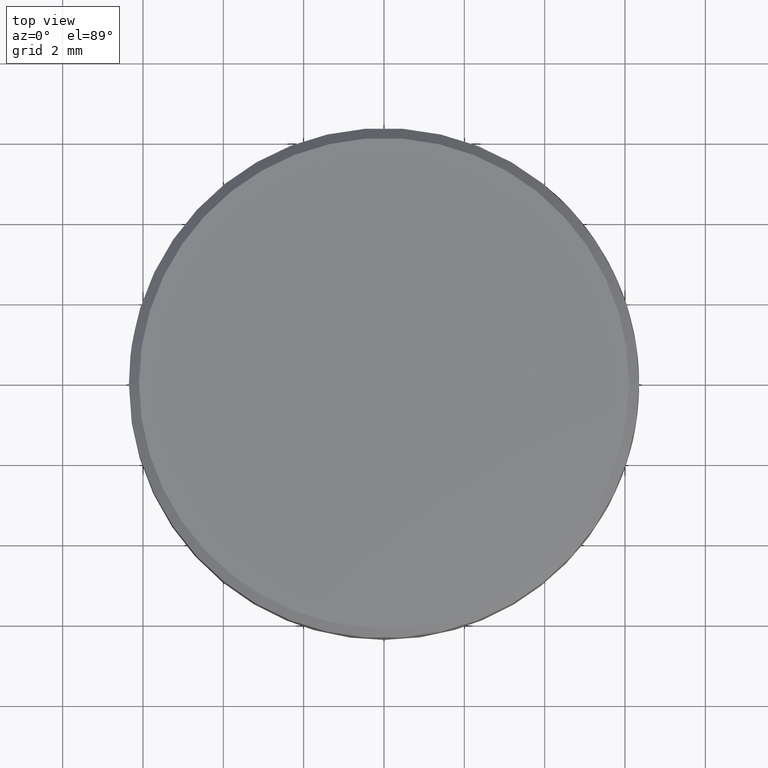
[diagram: clean part render]
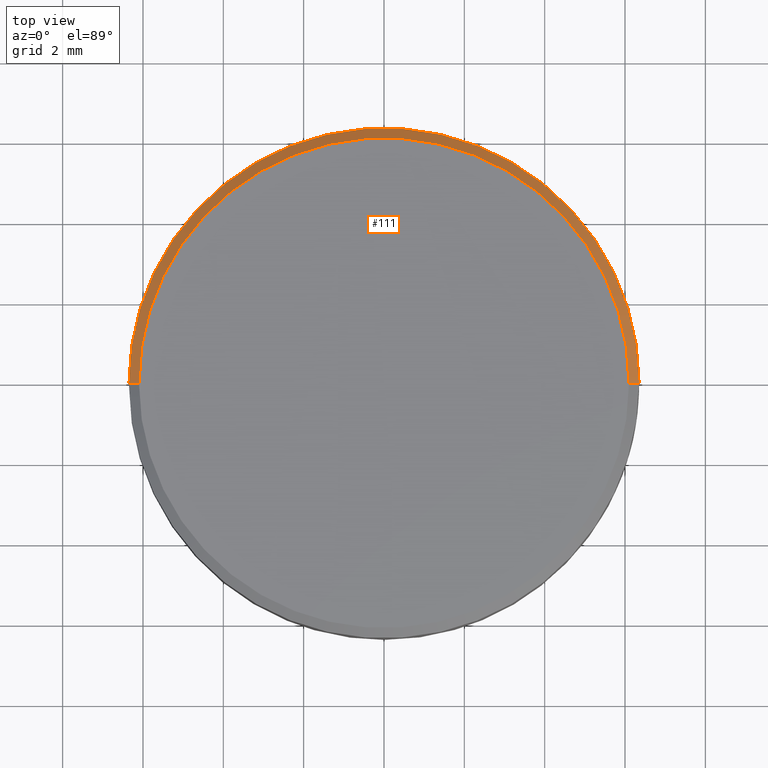
[diagram: same view with one face highlighted and labeled with its STEP entity id]
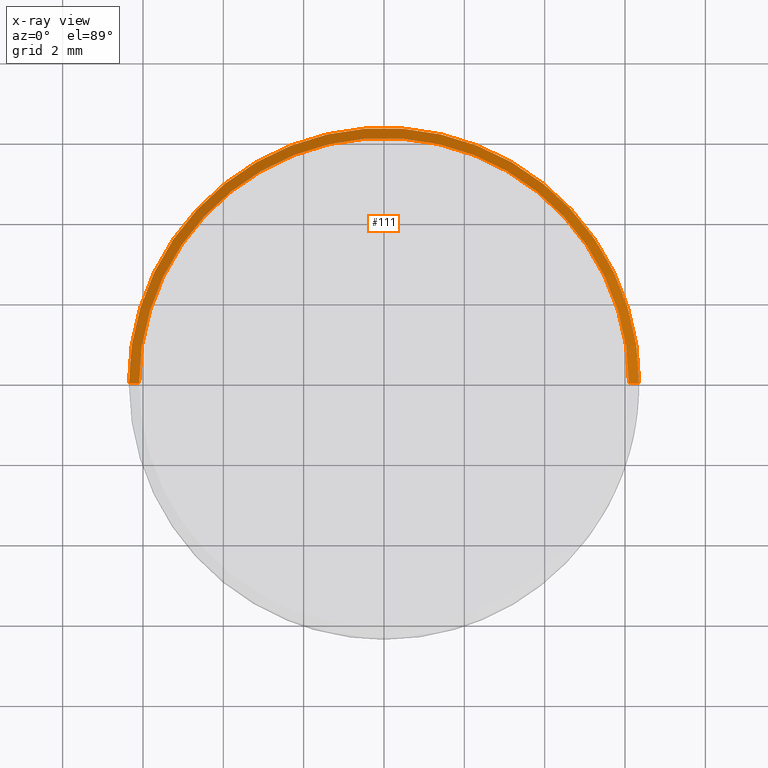
[diagram: x-ray of the same camera — body ghosted, the highlighted face saturated]
A machine part, top view. The second image highlights one B-rep face of the part: STEP entity #111.
The next image is the same camera in x-ray: the body ghosted, the highlighted face saturated — about 0% of this face is hidden behind the body in this view.
In plain terms, the highlighted conical surface has half-angle 45 deg.
Its self-contained STEP definition (entity closure, byte-faithful):
#93 = VERTEX_POINT ( 'NONE', #1017 ) ;
#95 = EDGE_CURVE ( 'NONE', #107, #157, #1034, .T. ) ;
#99 = ORIENTED_EDGE ( 'NONE', *, *, #95, .F. ) ;
#105 = ORIENTED_EDGE ( 'NONE', *, *, #114, .F. ) ;
#107 = VERTEX_POINT ( 'NONE', #1066 ) ;
#111 = ADVANCED_FACE ( 'NONE', ( #1065 ), #1071, .T. ) ;
#112 = ORIENTED_EDGE ( 'NONE', *, *, #113, .T. ) ;
#113 = EDGE_CURVE ( 'NONE', #93, #159, #1057, .T. ) ;
#114 = EDGE_CURVE ( 'NONE', #93, #107, #1103, .T. ) ;
#117 = ORIENTED_EDGE ( 'NONE', *, *, #118, .F. ) ;
#118 = EDGE_CURVE ( 'NONE', #157, #159, #1100, .T. ) ;
#157 = VERTEX_POINT ( 'NONE', #1250 ) ;
#159 = VERTEX_POINT ( 'NONE', #1246 ) ;
#177 = EDGE_LOOP ( 'NONE', ( #105, #112, #117, #99 ) ) ;
#1017 = CARTESIAN_POINT ( 'NONE',  ( 6.099999999999992500, 7.623426324692269300E-016, 1.500000000000000000 ) ) ;
#1031 = DIRECTION ( 'NONE',  ( -0.7071067811865450200, 0.0000000000000000000, -0.7071067811865500200 ) ) ;
#1032 = VECTOR ( 'NONE', #1031, 1000.000000000000200 ) ;
#1033 = CARTESIAN_POINT ( 'NONE',  ( -6.099999999999992500, 0.0000000000000000000, 1.500000000000000000 ) ) ;
#1034 = LINE ( 'NONE', #1033, #1032 ) ;
#1054 = DIRECTION ( 'NONE',  ( 0.7071067811865450200, 8.659560562354902000E-017, -0.7071067811865500200 ) ) ;
#1055 = VECTOR ( 'NONE', #1054, 1000.000000000000200 ) ;
#1056 = CARTESIAN_POINT ( 'NONE',  ( 6.099999999999992500, 7.470345474798845400E-016, 1.500000000000000000 ) ) ;
#1057 = LINE ( 'NONE', #1056, #1055 ) ;
#1058 = DIRECTION ( 'NONE',  ( -1.000000000000000000, 0.0000000000000000000, 0.0000000000000000000 ) ) ;
#1059 = CARTESIAN_POINT ( 'NONE',  ( 0.0000000000000000000, 0.0000000000000000000, 1.500000000000000000 ) ) ;
#1060 = AXIS2_PLACEMENT_3D ( 'NONE', #1059, #1102, #1101 ) ;
#1064 = CARTESIAN_POINT ( 'NONE',  ( 0.0000000000000000000, 0.0000000000000000000, 1.500000000000000000 ) ) ;
#1065 = FACE_OUTER_BOUND ( 'NONE', #177, .T. ) ;
#1066 = CARTESIAN_POINT ( 'NONE',  ( -6.099999999999992500, 0.0000000000000000000, 1.500000000000000000 ) ) ;
#1070 = DIRECTION ( 'NONE',  ( 0.0000000000000000000, 0.0000000000000000000, -1.000000000000000000 ) ) ;
#1071 = CONICAL_SURFACE ( 'NONE', #1075, 6.099999999999992500, 0.7853981633974447300 ) ;
#1075 = AXIS2_PLACEMENT_3D ( 'NONE', #1064, #1070, #1058 ) ;
#1093 = DIRECTION ( 'NONE',  ( 1.000000000000000000, 0.0000000000000000000, 0.0000000000000000000 ) ) ;
#1094 = DIRECTION ( 'NONE',  ( 0.0000000000000000000, 0.0000000000000000000, -1.000000000000000000 ) ) ;
#1095 = CARTESIAN_POINT ( 'NONE',  ( 0.0000000000000000000, 0.0000000000000000000, 1.249999999999991100 ) ) ;
#1096 = AXIS2_PLACEMENT_3D ( 'NONE', #1095, #1094, #1093 ) ;
#1100 = CIRCLE ( 'NONE', #1096, 6.349999999999999600 ) ;
#1101 = DIRECTION ( 'NONE',  ( 1.000000000000000000, 0.0000000000000000000, 0.0000000000000000000 ) ) ;
#1102 = DIRECTION ( 'NONE',  ( 0.0000000000000000000, 0.0000000000000000000, 1.000000000000000000 ) ) ;
#1103 = CIRCLE ( 'NONE', #1060, 6.099999999999992500 ) ;
#1246 = CARTESIAN_POINT ( 'NONE',  ( 6.349999999999999600, 7.776507174585692200E-016, 1.249999999999991100 ) ) ;
#1250 = CARTESIAN_POINT ( 'NONE',  ( -6.349999999999999600, 0.0000000000000000000, 1.249999999999991100 ) ) ;